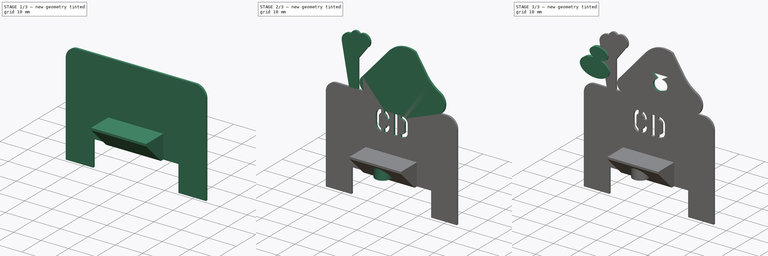
[diagram: build sequence overview — one tinted view per stage of 3, left to right]
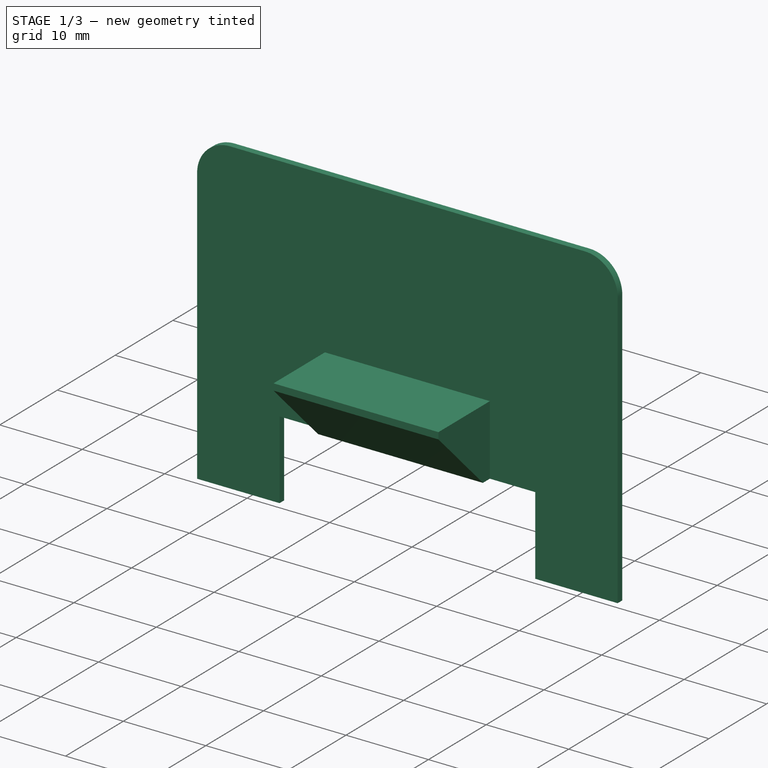
[diagram: stage 1 of 3 — iso view after this stage's code; geometry added in this stage tinted green]
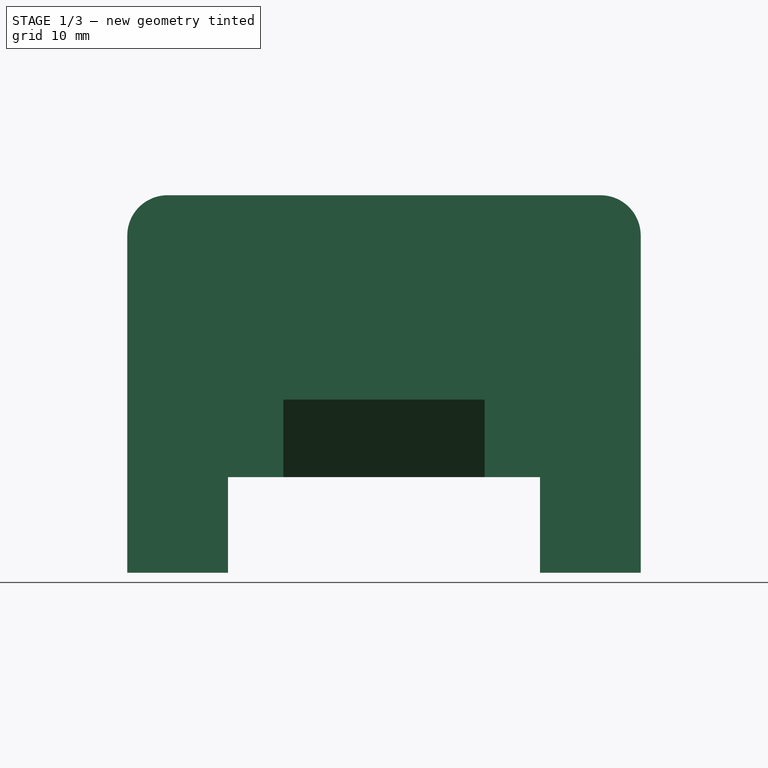
[diagram: stage 1 of 3 — front view after this stage's code; geometry added in this stage tinted green]
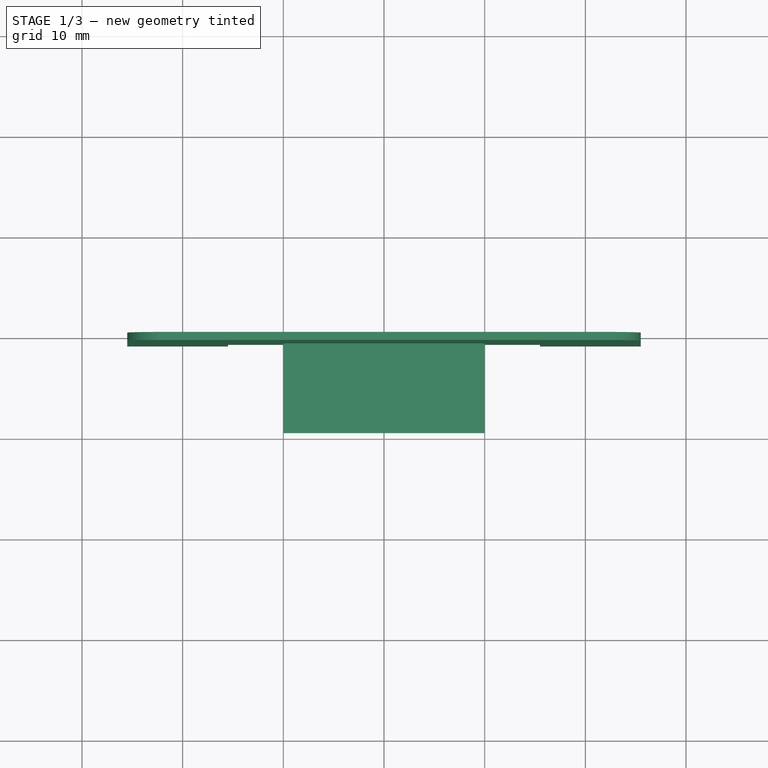
[diagram: stage 1 of 3 — top view after this stage's code; geometry added in this stage tinted green]
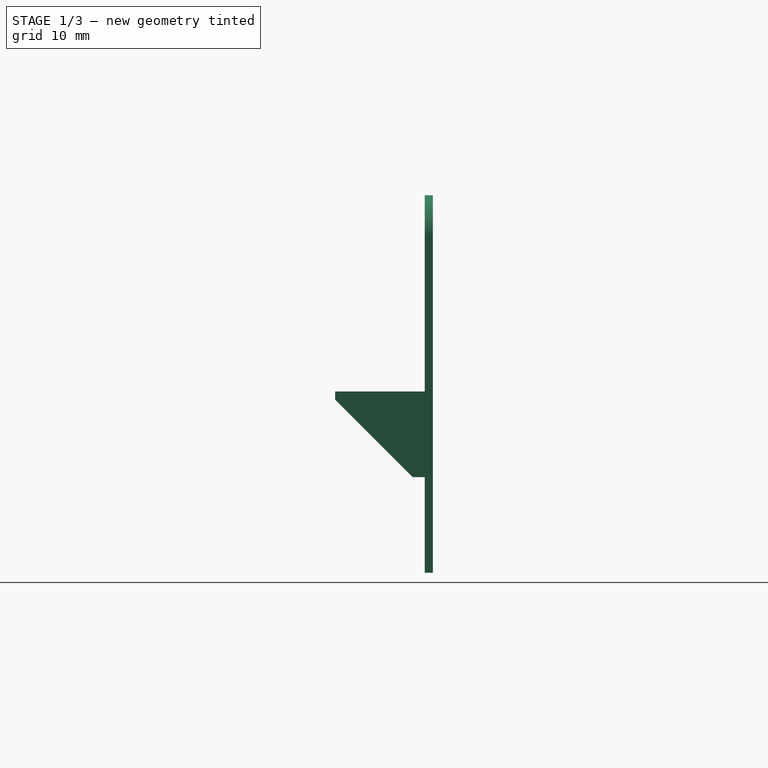
[diagram: stage 1 of 3 — right view after this stage's code; geometry added in this stage tinted green]
FCSTD DOCUMENT  (FreeCAD 0.19R24276 (Git))
Label: EscornafacePeregrinBreaSegade
License: Creative Commons Attribution-ShareAlike
LicenseURL: http://creativecommons.org/licenses/by-sa/4.0/
objects: Sketcher::SketchObject×6, PartDesign::Pad×5, PartDesign::Pocket×2, Part::Part2DObjectPython×1, Image::ImagePlane×1, PartDesign::Body×1, App::Part×1
note: 22 computed .brp shape members not serialized (recipe doc carries the construction recipe); baked Part::Feature solids carry a one-line shape summary decoded from their .brp

FEATURE [Sketcher::SketchObject] Sketch  label="Sketch-base"
  FullyConstrained = true
  MapMode = 5
  Placement = pos=(0,0,0) rot=(1,0,0;1.5708rad)
  Support = -> [XZ_Plane002]
  sketch-geometry (10):
    g0: LineSegment StartX=-25.5 StartY=14.5 StartZ=0 EndX=-25.5 EndY=48 EndZ=0
    g1: ArcOfCircle CenterX=-21.5 CenterY=48 CenterZ=0 NormalX=0 NormalY=0 NormalZ=1 AngleXU=0 Radius=4 StartAngle=1.5708 EndAngle=3.14159
    g2: LineSegment StartX=-21.5 StartY=52 StartZ=0 EndX=21.5 EndY=52 EndZ=0
    g3: ArcOfCircle CenterX=21.5 CenterY=48 CenterZ=0 NormalX=0 NormalY=0 NormalZ=1 AngleXU=0 Radius=4 StartAngle=1e-16 EndAngle=1.5708
    g4: LineSegment StartX=25.5 StartY=48 StartZ=0 EndX=25.5 EndY=14.5 EndZ=0
    g5: LineSegment StartX=25.5 StartY=14.5 StartZ=0 EndX=15.5 EndY=14.5 EndZ=0
    g6: LineSegment StartX=15.5 StartY=14.5 StartZ=0 EndX=15.5 EndY=24 EndZ=0
    g7: LineSegment StartX=15.5 StartY=24 StartZ=0 EndX=-15.5 EndY=24 EndZ=0
    g8: LineSegment StartX=-15.5 StartY=24 StartZ=0 EndX=-15.5 EndY=14.5 EndZ=0
    g9: LineSegment StartX=-15.5 StartY=14.5 StartZ=0 EndX=-25.5 EndY=14.5 EndZ=0
  constraints (27):
    c: Vertical(g0)
    c: Tangent(g0,g1) = 1.5708
    c: Tangent(g1,g2) = 1.5708
    c: Tangent(g2,g3) = 1.5708
    c: Tangent(g3,g4) = 1.5708
    c: Coincident(g4,g5)
    c: Horizontal(g5)
    c: Coincident(g5,g6)
    c: Vertical(g6)
    c: Coincident(g6,g7)
    c: Horizontal(g7)
    c: Coincident(g7,g8)
    c: Vertical(g8)
    c: Coincident(g8,g9)
    c: Coincident(g9,g0)
    c: Horizontal(g9)
    c: Equal(g9,g5)
    c: Vertical(g4)
    c: Horizontal(g2)
    c: Symmetric(g8,g5,g-2)
    c: Equal(g1,g3)
    c: DistanceX(g0,g3) = 51
    c: DistanceY(g4,g2) = 37.5
    c: DistanceX(g5,g5) = 10
    c: DistanceY(g6,g6) = 9.5
    c: DistanceY(g5) = 14.5
    c: Radius(g1) = 4
FEATURE [PartDesign::Pad] Pad  label="Pad-base"
  Direction = (1,1,1)
  Length = 0.8
  Length2 = 100
  Placement = pos=(0,0,0) rot=(1,0,0;1.5708rad)
  Profile = -> Sketch
  Type = 0
FEATURE [Sketcher::SketchObject] Sketch001  label="Sketch-support"
  FullyConstrained = true
  MapMode = 5
  Placement = pos=(0,0,0) rot=(0.57735,0.57735,0.57735;2.0944rad)
  Support = -> [YZ_Plane002]
  sketch-geometry (5):
    g0: LineSegment StartX=-2 StartY=24 StartZ=0 EndX=-9.7 EndY=31.7 EndZ=0
    g1: LineSegment StartX=-9.7 StartY=32.5 StartZ=0 EndX=0 EndY=32.5 EndZ=0
    g2: LineSegment StartX=0 StartY=32.5 StartZ=0 EndX=0 EndY=24 EndZ=0
    g3: LineSegment StartX=-2 StartY=24 StartZ=0 EndX=0 EndY=24 EndZ=0
    g4: LineSegment StartX=-9.7 StartY=31.7 StartZ=0 EndX=-9.7 EndY=32.5 EndZ=0
  constraints (15):
    c: Horizontal(g1)
    c: Coincident(g1,g2)
    c: Vertical(g2)
    c: Angle(g2,g0) = 0.785398
    c: Horizontal(g3)
    c: Coincident(g0,g3)
    c: Coincident(g2,g3)
    c: DistanceY(g2,g2) = 8.5
    c: PointOnObject(g2,g-2)
    c: Vertical(g4)
    c: Coincident(g1,g4)
    c: Coincident(g0,g4)
    c: DistanceX(g3,g3) = 2
    c: DistanceY(g4,g4) = 0.8
    c: DistanceY(g2) = 24
FEATURE [PartDesign::Pad] Pad001  label="Pad-support"
  BaseFeature = -> Pad
  Direction = (1,1,1)
  Length = 20
  Length2 = 100
  Midplane = true
  Placement = pos=(0,0,0) rot=(1,0,0;1.5708rad)
  Profile = -> Sketch001
  Refine = true
  Type = 0
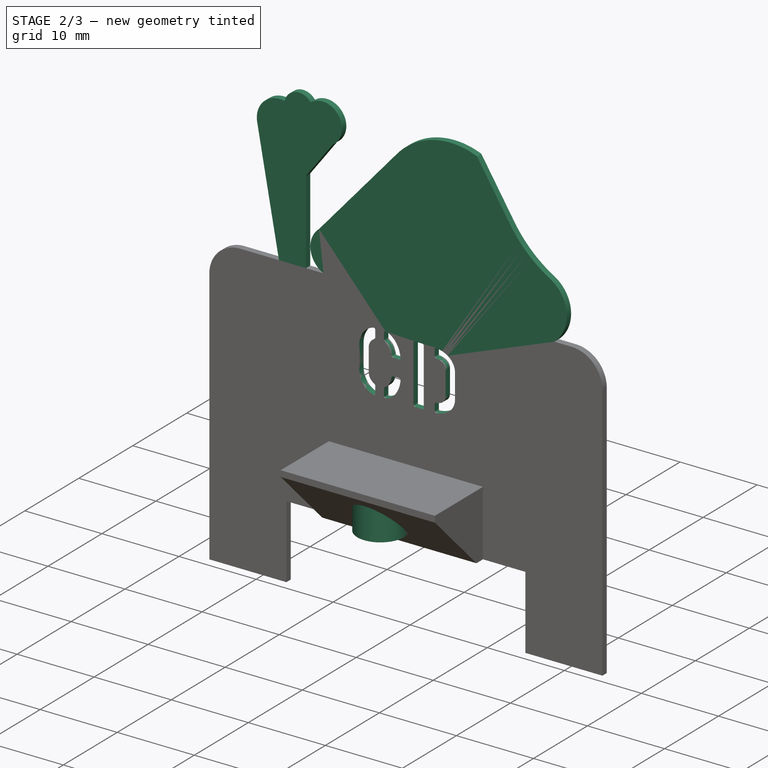
[diagram: stage 2 of 3 — iso view after this stage's code; geometry added in this stage tinted green]
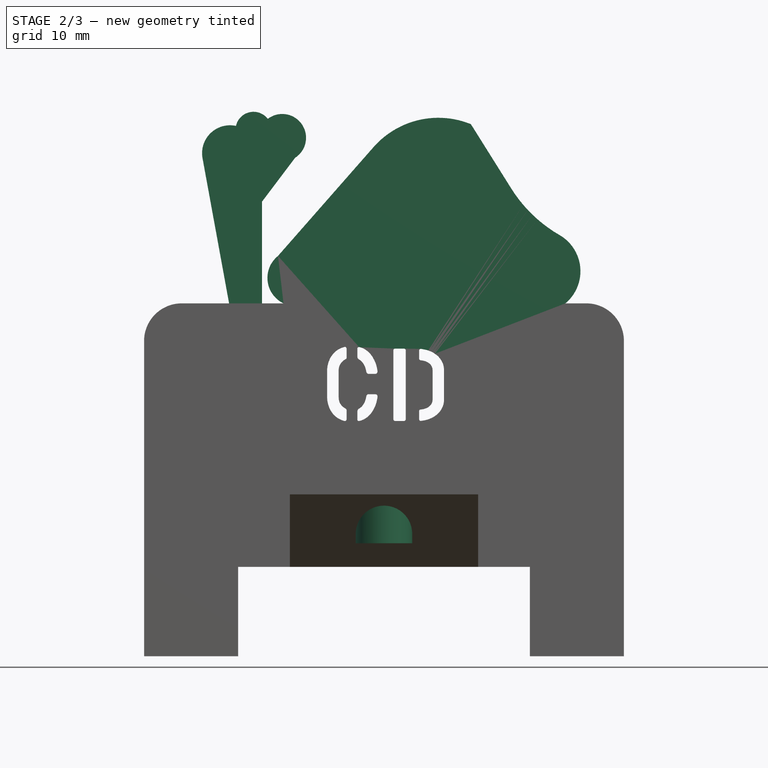
[diagram: stage 2 of 3 — front view after this stage's code; geometry added in this stage tinted green]
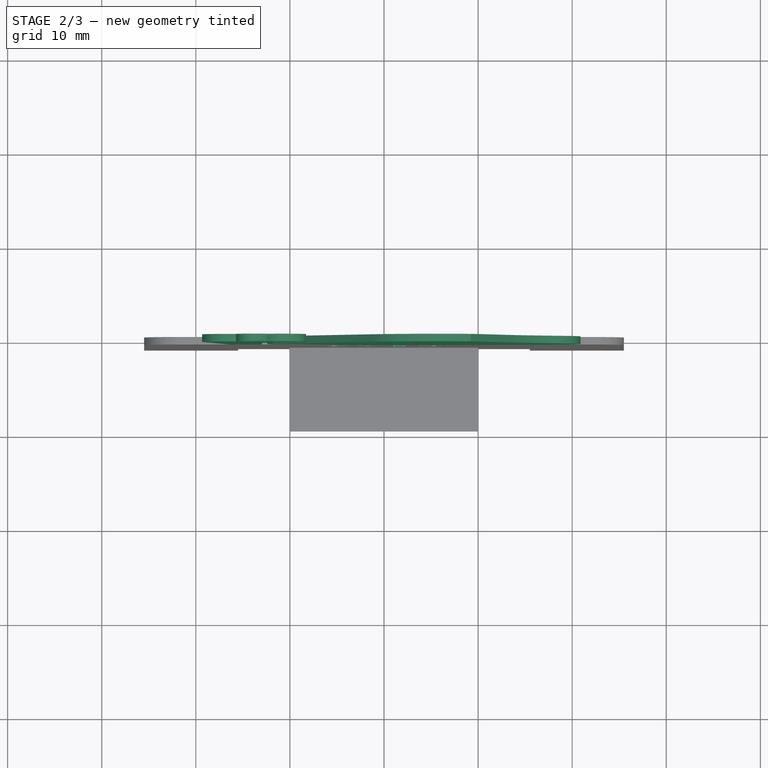
[diagram: stage 2 of 3 — top view after this stage's code; geometry added in this stage tinted green]
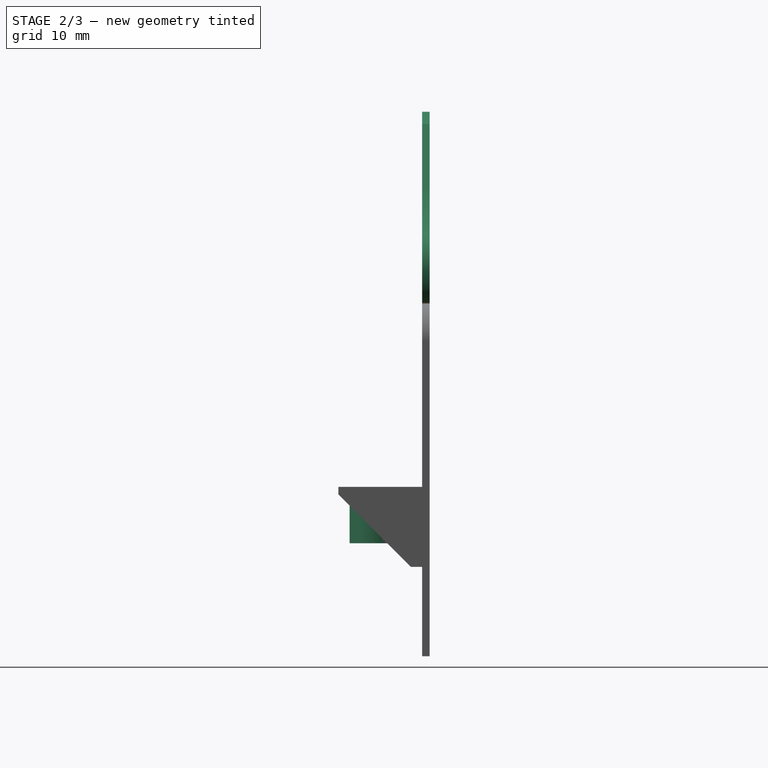
[diagram: stage 2 of 3 — right view after this stage's code; geometry added in this stage tinted green]
FEATURE [Part::Part2DObjectPython] ShapeString  label="ShapeString-name"  # Draft 2D object (typed FeaturePython)
  AttachmentOffset = pos=(-20,41,0) rot=(0,0,1;0rad)
  FontFile = <userpath>/Documents/ObradoirosRobotica/ObradoiroExtensiónMiguel/escornabot-extras/escornaface.otf
  Placement = pos=(-6.86333,-1,39.5) rot=(1,0,0;1.5708rad)
  Size = 4
  String = CD
  Tracking = 0
  expr: .Placement.Base.x = .Shape.BoundBox.XLength / -2 - 0.65
FEATURE [Sketcher::SketchObject] Sketch003  label="Sketch-hook"
  FullyConstrained = true
  MapMode = 5
  Placement = pos=(-9.1e-15,2.15e-14,32.5) rot=(0,0,1;3.14159rad)
  Support = -> [Pad001]
  sketch-geometry (1):
    g0: Circle CenterX=0 CenterY=5.5 CenterZ=0 NormalX=0 NormalY=0 NormalZ=1 AngleXU=0 Radius=3
  constraints (3):
    c: Radius(g0) = 3
    c: DistanceY(g0) = 5.5
    c: PointOnObject(g0,g-2)
FEATURE [PartDesign::Pad] Pad002  label="Pad-hook"
  BaseFeature = -> Pad001
  Direction = (1,1,1)
  Length = 6
  Length2 = 100
  Placement = pos=(0,0,0) rot=(1,0,0;1.5708rad)
  Profile = -> Sketch003
  Refine = true
  Reversed = true
  Type = 0
FEATURE [PartDesign::Pocket] Pocket  label="Pocket-name"
  BaseFeature = -> Pad002
  Length = 5
  Length2 = 100
  Placement = pos=(0,0,0) rot=(1,0,0;1.5708rad)
  Profile = -> ShapeString
  Type = 0
FEATURE [Image::ImagePlane] ImagePlane  label="ImageBocetoPeregrino"
  Placement = pos=(4,1.09e-14,49) rot=(-1,0,0;4.71239rad)
  XSize = 62.2648
  YSize = 83.0852
FEATURE [Sketcher::SketchObject] Sketch004  label="Sketch-fondo"
  FullyConstrained = false
  MapMode = 5
  Placement = pos=(0,-0.8,1e-16) rot=(1,0,0;1.5708rad)
  Support = -> [Pocket]
  sketch-geometry (15):
    g0: LineSegment StartX=-16.1497 StartY=50.2838 StartZ=0 EndX=-19.2864 EndY=67.4257 EndZ=0
    g1: ArcOfCircle CenterX=-16.3666 CenterY=67.96 CenterZ=0 NormalX=0 NormalY=0 NormalZ=1 AngleXU=0 Radius=2.9683 StartAngle=1.35509 EndAngle=3.32257
    g2: ArcOfCircle CenterX=-13.8661 CenterY=70.4508 CenterZ=0 NormalX=0 NormalY=0 NormalZ=1 AngleXU=0 Radius=1.9094 StartAngle=0.652072 EndAngle=2.92588
    g3: ArcOfCircle CenterX=-10.8137 CenterY=69.5993 CenterZ=0 NormalX=0 NormalY=0 NormalZ=1 AngleXU=0 Radius=2.52903 StartAngle=5.28276 EndAngle=8.50605
    g4: LineSegment StartX=-9.44821 StartY=67.4707 StartZ=0 EndX=-12.9622 EndY=62.8135 EndZ=0
    g5: LineSegment StartX=-12.9622 StartY=62.8135 StartZ=0 EndX=-12.9622 EndY=50.4207 EndZ=0
    g6: LineSegment StartX=-12.9622 StartY=50.4207 StartZ=0 EndX=-16.1497 EndY=50.2838 EndZ=0
    g7: LineSegment StartX=-4.78025 StartY=51.4469 StartZ=0 EndX=-9.56024 EndY=51.7139 EndZ=0
    g8: ArcOfCircle CenterX=-9.39315 CenterY=54.7048 CenterZ=0 NormalX=0 NormalY=0 NormalZ=1 AngleXU=0 Radius=2.99548 StartAngle=2.24633 EndAngle=4.65658
    g9: LineSegment StartX=-11.2663 StartY=57.0424 StartZ=0 EndX=-1.11322 EndY=68.6052 EndZ=0
    g10: ArcOfCircle CenterX=5.77515 CenterY=62.5567 CenterZ=0 NormalX=0 NormalY=0 NormalZ=1 AngleXU=0 Radius=9.16701 StartAngle=1.18396 EndAngle=2.42102
    g11: LineSegment StartX=9.23351 StartY=71.0463 StartZ=0 EndX=13.5232 EndY=64.2084 EndZ=0
    g12: ArcOfCircle CenterX=26.0606 CenterY=72.0736 CenterZ=0 NormalX=0 NormalY=0 NormalZ=1 AngleXU=0 Radius=14.8003 StartAngle=3.70187 EndAngle=4.18869
    g13: ArcOfCircle CenterX=16.4396 CenterY=55.4133 CenterZ=0 NormalX=0 NormalY=0 NormalZ=1 AngleXU=0 Radius=4.43845 StartAngle=5.1778 EndAngle=7.33029
    g14: LineSegment StartX=18.4316 StartY=51.4469 StartZ=0 EndX=-4.78025 EndY=51.4469 EndZ=0
  constraints (17):
    c: Tangent(g0,g1) = 1.5708
    c: Perpendicular(g1,g2) = 1.5708
    c: Perpendicular(g2,g3) = 1.5708
    c: Coincident(g3,g4)
    c: Coincident(g4,g5)
    c: Vertical(g5)
    c: Coincident(g5,g6)
    c: Coincident(g6,g0)
    c: Tangent(g7,g8) = 1.5708
    c: Coincident(g8,g9)
    c: Tangent(g9,g10) = 1.5708
    c: Coincident(g10,g11)
    c: Tangent(g11,g12) = -1.5708
    c: Tangent(g12,g13) = 1.5708
    c: Coincident(g13,g14)
    c: Coincident(g14,g7)
    c: Horizontal(g14)
FEATURE [PartDesign::Pad] Pad003  label="Pad-fondo"
  BaseFeature = -> Pocket
  Direction = (1,1,1)
  Length = 0.8
  Length2 = 100
  Placement = pos=(0,0,0) rot=(1,0,0;1.5708rad)
  Profile = -> Sketch004
  Refine = true
  Reversed = true
  Type = 0
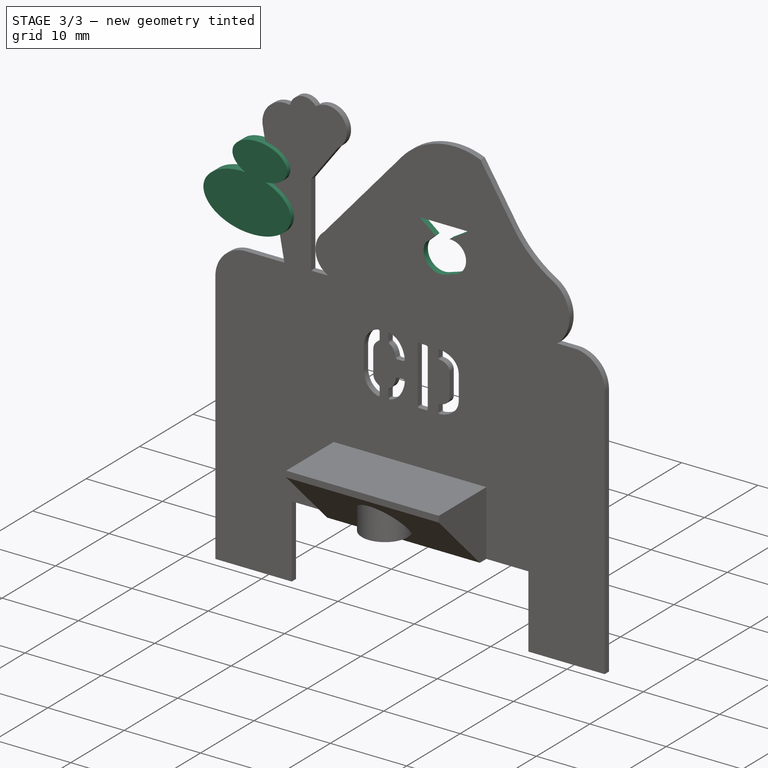
[diagram: stage 3 of 3 — iso view after this stage's code; geometry added in this stage tinted green]
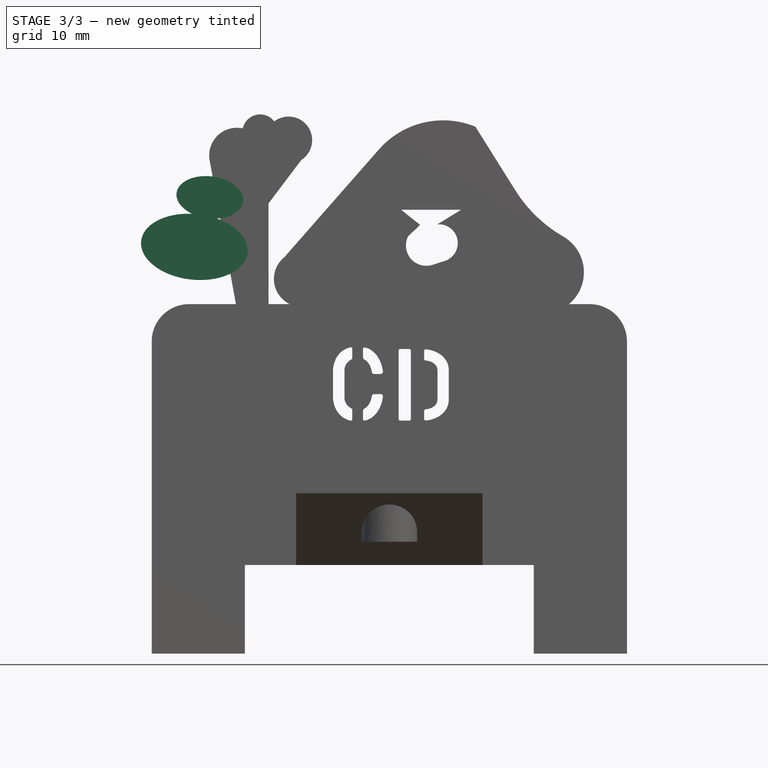
[diagram: stage 3 of 3 — front view after this stage's code; geometry added in this stage tinted green]
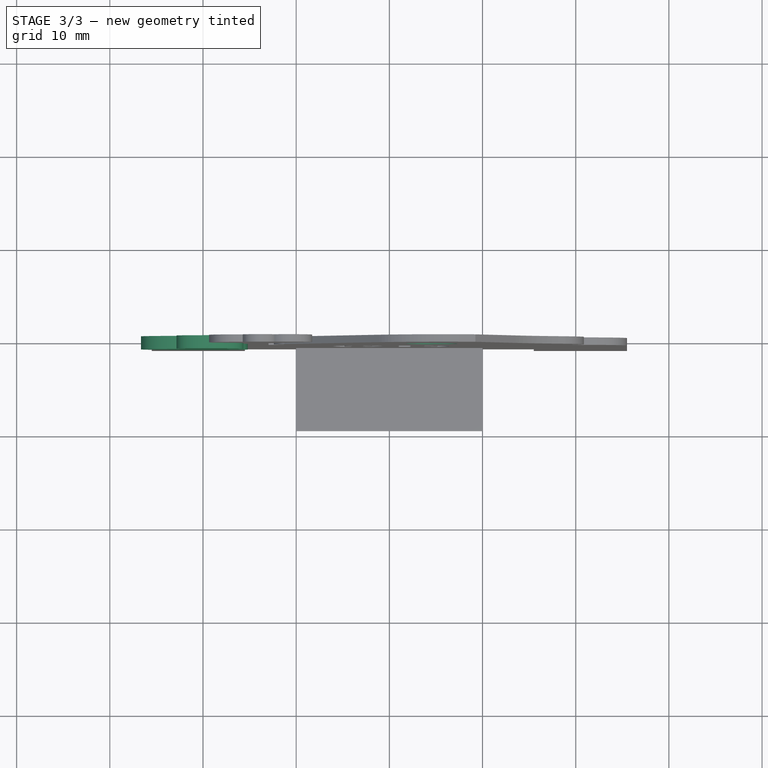
[diagram: stage 3 of 3 — top view after this stage's code; geometry added in this stage tinted green]
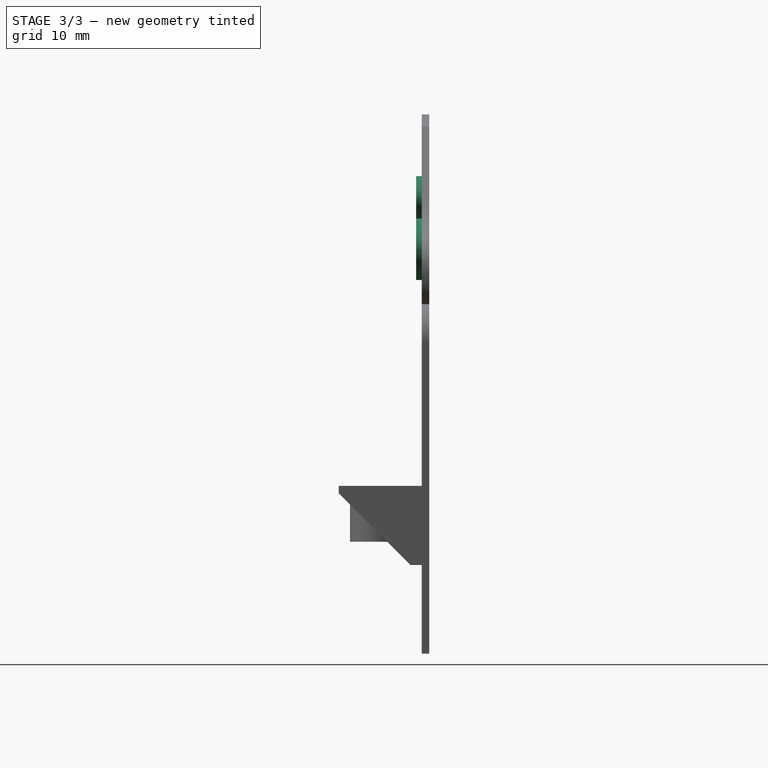
[diagram: stage 3 of 3 — right view after this stage's code; geometry added in this stage tinted green]
FEATURE [Sketcher::SketchObject] Sketch005  label="Sketch-cabaza"
  FullyConstrained = false
  MapMode = 5
  Placement = pos=(0,3e-15,0) rot=(-1,0,0;1.5708rad)
  Support = -> [Pad003]
  sketch-geometry (10):
    g0: ArcOfEllipse CenterX=-19.257 CenterY=-63.4644 CenterZ=0 NormalX=0 NormalY=0 NormalZ=1 MajorRadius=3.60637 MinorRadius=2.25058 AngleXU=0.129081 StartAngle=2.04875 EndAngle=7.56736
    g1: LineSegment StartX=-15.6806 StartY=-63.0001 StartZ=0 EndX=-22.8334 EndY=-63.9286 EndZ=0
    g2: LineSegment StartX=-19.5467 StartY=-61.2325 StartZ=0 EndX=-18.9673 EndY=-65.6962 EndZ=0
    g3: GeomPoint X=-16.4625 Y=-63.1016 Z=0
    g4: GeomPoint X=-22.0515 Y=-63.8271 Z=0
    g5: ArcOfEllipse CenterX=-20.9246 CenterY=-58.1463 CenterZ=0 NormalX=0 NormalY=0 NormalZ=1 MajorRadius=5.74504 MinorRadius=3.52344 AngleXU=-3.03168 StartAngle=1.93608 EndAngle=7.7454
    g6: LineSegment StartX=-26.635 StartY=-58.7765 StartZ=0 EndX=-15.2142 EndY=-57.5161 EndZ=0
    g7: LineSegment StartX=-20.5381 StartY=-61.6485 StartZ=0 EndX=-21.3111 EndY=-54.6441 EndZ=0
    g8: GeomPoint X=-25.4349 Y=-58.644 Z=0
    g9: GeomPoint X=-16.4143 Y=-57.6486 Z=0
  constraints (4):
    c: InternalAlignment(g1-g4 -> g0) x4
    c: InternalAlignment(g6-g9 -> g5) x4
    c: Coincident(g5,g0)
    c: Coincident(g5,g0)
FEATURE [PartDesign::Pad] Pad004  label="Pad-cabaza"
  BaseFeature = -> Pad003
  Direction = (1,1,1)
  Length = 1.4
  Length2 = 100
  Placement = pos=(0,0,0) rot=(1,0,0;1.5708rad)
  Profile = -> Sketch005
  Reversed = true
  Type = 0
FEATURE [Sketcher::SketchObject] Sketch006  label="Sketch-cuncha"
  FullyConstrained = false
  MapMode = 5
  Placement = pos=(0,-0.8,2e-16) rot=(1,0,0;1.5708rad)
  Support = -> [Pad003]
  sketch-geometry (7):
    g0: LineSegment StartX=1.25735 StartY=62.1309 StartZ=0 EndX=7.70882 EndY=62.1309 EndZ=0
    g1: ArcOfCircle CenterX=5.32698 CenterY=58.5515 CenterZ=0 NormalX=0 NormalY=0 NormalZ=1 AngleXU=0 Radius=2.01276 StartAngle=5.02571 EndAngle=7.94422
    g2: LineSegment StartX=5.94735 StartY=56.6368 StartZ=0 EndX=4.62238 EndY=56.216 EndZ=0
    g3: ArcOfCircle CenterX=3.9618 CenterY=58.2961 CenterZ=0 NormalX=0 NormalY=0 NormalZ=1 AngleXU=0 Radius=2.18251 StartAngle=2.66367 EndAngle=5.01988
    g4: LineSegment StartX=2.02383 StartY=59.3 StartZ=0 EndX=3.3108 EndY=60.4974 EndZ=0
    g5: LineSegment StartX=3.3108 StartY=60.4974 StartZ=0 EndX=1.25735 EndY=62.1309 EndZ=0
    g6: LineSegment StartX=5.14559 StartY=60.5561 StartZ=0 EndX=7.70882 EndY=62.1309 EndZ=0
  constraints (8):
    c: Horizontal(g0)
    c: Coincident(g1,g2)
    c: Tangent(g2,g3) = 1.5708
    c: Coincident(g3,g4)
    c: Coincident(g4,g5)
    c: Coincident(g5,g0)
    c: Coincident(g6,g1)
    c: Coincident(g6,g0)
FEATURE [PartDesign::Pocket] Pocket001  label="Pocket-cuncha"
  BaseFeature = -> Pad004
  Length = 5
  Length2 = 100
  Placement = pos=(0,0,0) rot=(1,0,0;1.5708rad)
  Profile = -> Sketch006
  Type = 0
FEATURE [PartDesign::Body] Body  label="Body-escornaface"
  Group = -> [Sketch,Pad,Sketch001,Pad001,Sketch003,Pad002,ShapeString,Pocket,Sketch004,Pad003,Sketch005,Pad004,Sketch006,Pocket001]
  Origin = -> Origin002
  Tip = -> Pocket001
FEATURE [App::Part] Part  label="Part-escornaface"
  Group = -> [Body]
  Origin = -> Origin001
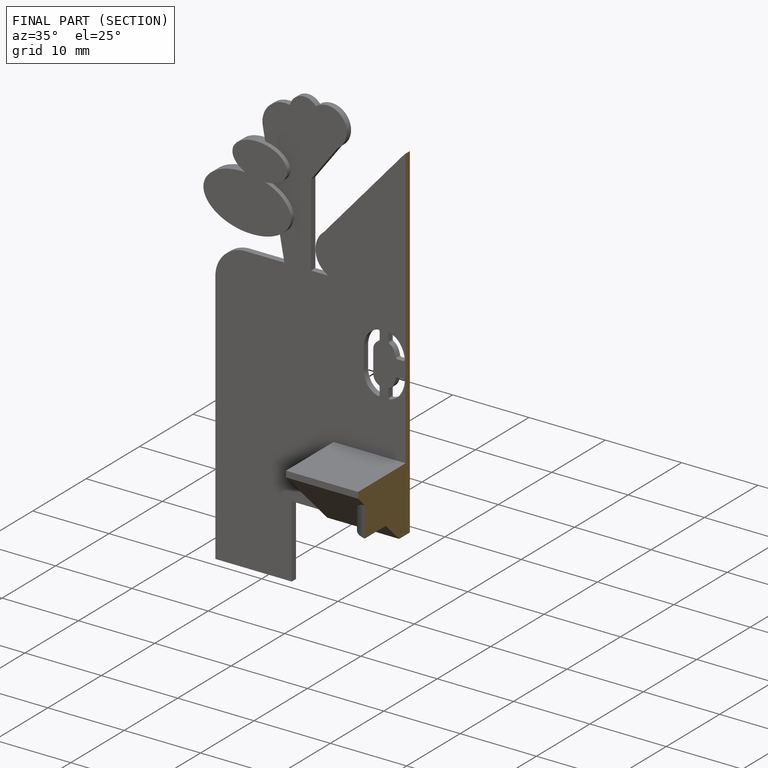
[diagram: finished part — half-section view (interior)]
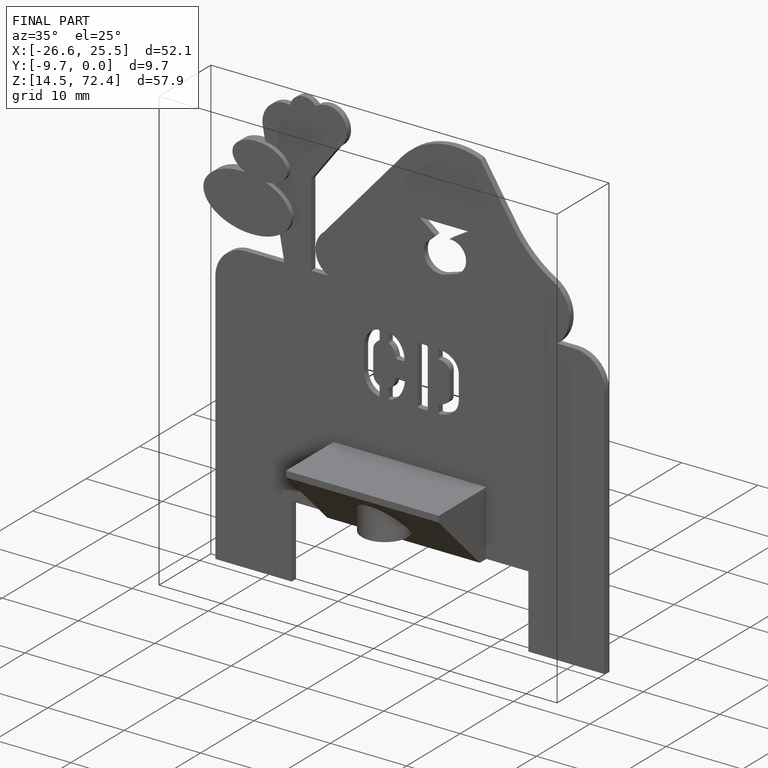
[diagram: finished part — iso view with bounding-box wireframe]
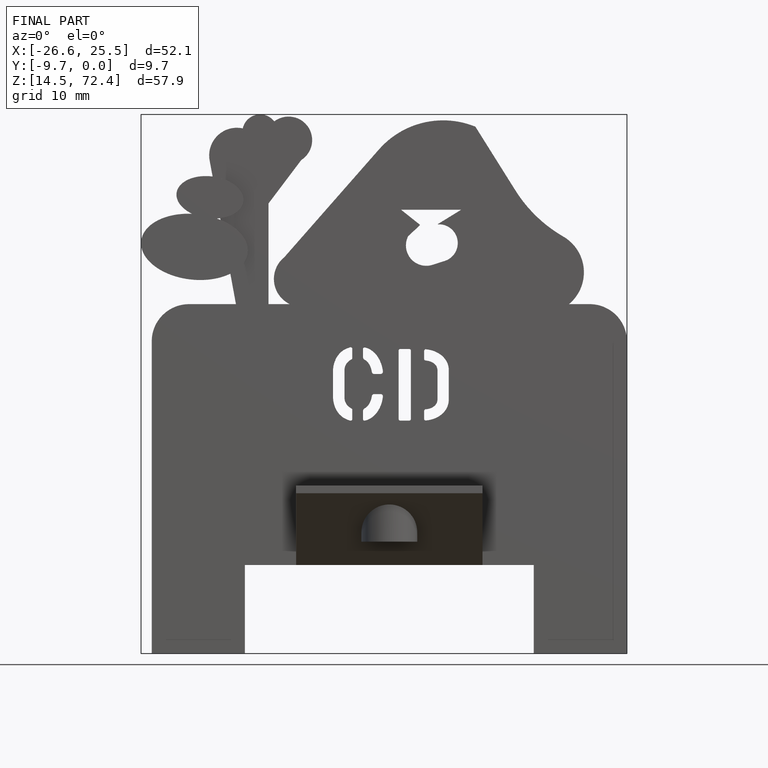
[diagram: finished part — front view with bounding-box wireframe]
